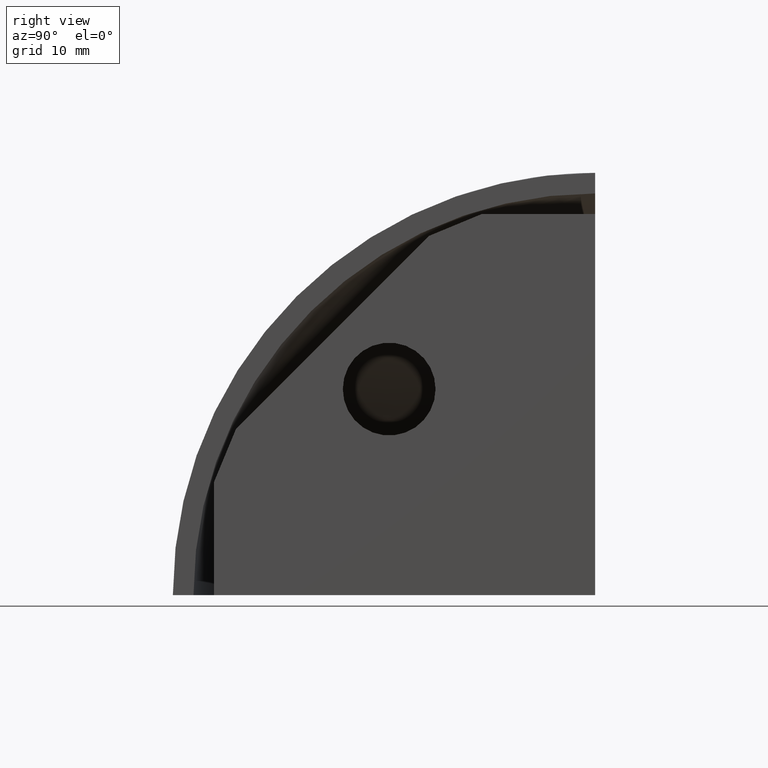
[diagram: clean part render]
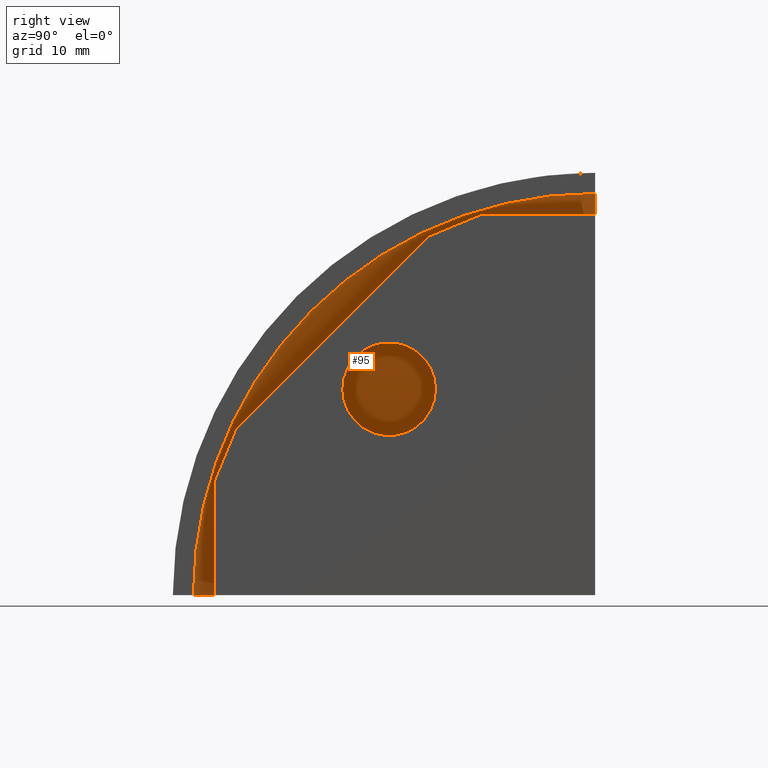
[diagram: same view with one face highlighted and labeled with its STEP entity id]
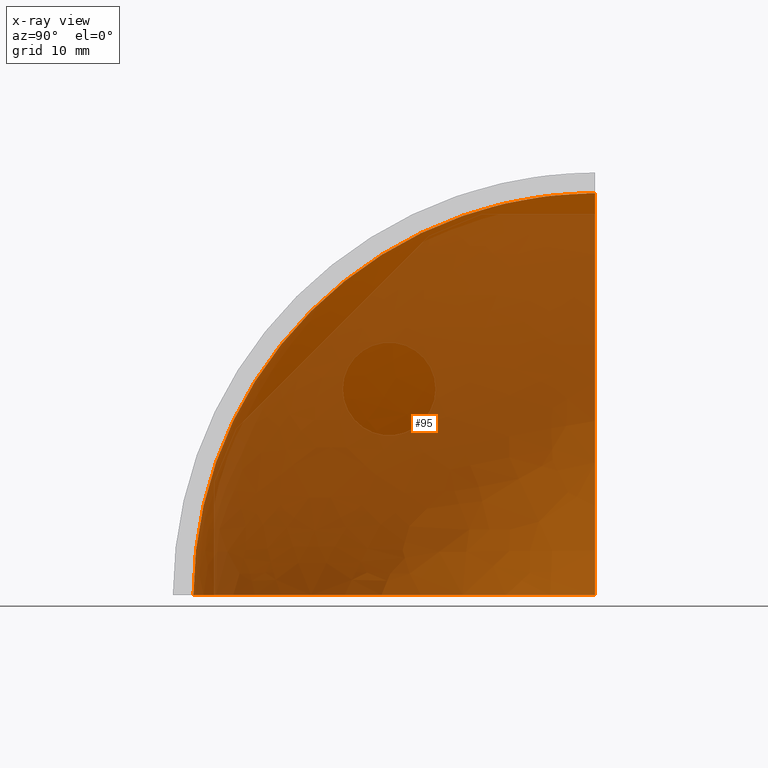
[diagram: x-ray of the same camera — body ghosted, the highlighted face saturated]
A machine part, right view. The second image highlights one B-rep face of the part: STEP entity #95.
The next image is the same camera in x-ray: the body ghosted, the highlighted face saturated — about 86% of this face is hidden behind the body in this view.
In plain terms, the highlighted face is a freeform B-spline surface patch.
Its self-contained STEP definition (entity closure, byte-faithful):
#49=CARTESIAN_POINT('',(-2.388061E-015,0.0,39.0));
#50=CARTESIAN_POINT('',(-2.388061E-015,0.0,39.0));
#51=CARTESIAN_POINT('',(-2.388061E-015,0.0,39.0));
#52=CARTESIAN_POINT('',(-38.999999999999993,0.0,39.0));
#53=CARTESIAN_POINT('',(-38.999999999999993,-38.999999999999986,39.0));
#54=CARTESIAN_POINT('',(-1.154632E-014,-38.999999999999993,39.0));
#55=CARTESIAN_POINT('',(-39.0,0.0,6.271678E-015));
#56=CARTESIAN_POINT('',(-39.0,-38.999999999999993,6.271678E-015));
#57=CARTESIAN_POINT('',(-8.659740E-015,-39.0,9.158258E-015));
#65=(BOUNDED_SURFACE()B_SPLINE_SURFACE(2,2,((#49,#52,#55),(#50,#53,#56),(#51,#54,#57)),.UNSPECIFIED.,.F.,.F.,.U.)GEOMETRIC_REPRESENTATION_ITEM()QUASI_UNIFORM_SURFACE()RATIONAL_B_SPLINE_SURFACE(((1.0,0.707106781186548,1.0),(0.707106781186548,0.500000000000000,0.707106781186548),(1.0,0.707106781186548,1.0)))REPRESENTATION_ITEM('')SURFACE());
#66=CARTESIAN_POINT('',(-3.552714E-015,0.0,39.0));
#67=VERTEX_POINT('',#66);
#68=CARTESIAN_POINT('',(-3.552714E-015,-39.0,2.960595E-015));
#69=VERTEX_POINT('',#68);
#70=CARTESIAN_POINT('',(3.552714E-015,0.0,0.0));
#71=DIRECTION('',(1.0,-6.123234E-017,7.401487E-017));
#72=DIRECTION('',(-6.123234E-017,-1.0,7.401487E-017));
#73=AXIS2_PLACEMENT_3D('',#70,#71,#72);
#74=CIRCLE('',#73,39.0);
#75=EDGE_CURVE('',#67,#69,#74,.T.);
#76=ORIENTED_EDGE('',*,*,#75,.T.);
#77=CARTESIAN_POINT('',(-39.0,0.0,0.0));
#78=VERTEX_POINT('',#77);
#79=CARTESIAN_POINT('',(0.0,0.0,2.960595E-015));
#80=DIRECTION('',(-7.401487E-017,0.0,1.0));
#81=DIRECTION('',(-1.0,0.0,-7.401487E-017));
#82=AXIS2_PLACEMENT_3D('',#79,#80,#81);
#83=CIRCLE('',#82,39.0);
#84=EDGE_CURVE('',#78,#69,#83,.T.);
#85=ORIENTED_EDGE('',*,*,#84,.F.);
#86=CARTESIAN_POINT('',(0.0,0.0,0.0));
#87=DIRECTION('',(0.0,-1.0,0.0));
#88=DIRECTION('',(-1.0,0.0,0.0));
#89=AXIS2_PLACEMENT_3D('',#86,#87,#88);
#90=CIRCLE('',#89,39.0);
#91=EDGE_CURVE('',#67,#78,#90,.T.);
#92=ORIENTED_EDGE('',*,*,#91,.F.);
#93=EDGE_LOOP('',(#76,#85,#92));
#94=FACE_OUTER_BOUND('',#93,.T.);
#95=ADVANCED_FACE('',(#94),#65,.T.);